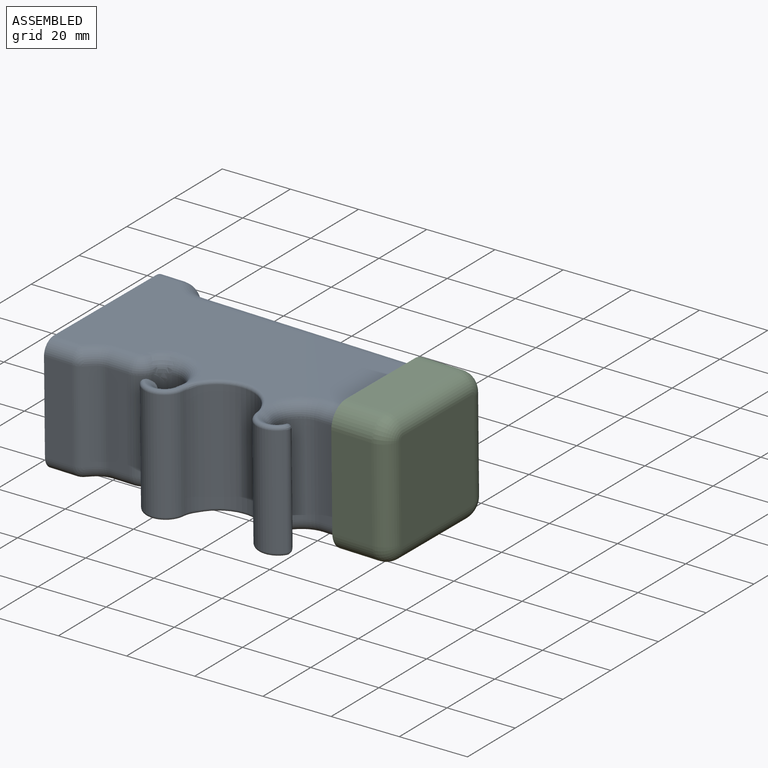
[diagram: assembled view]
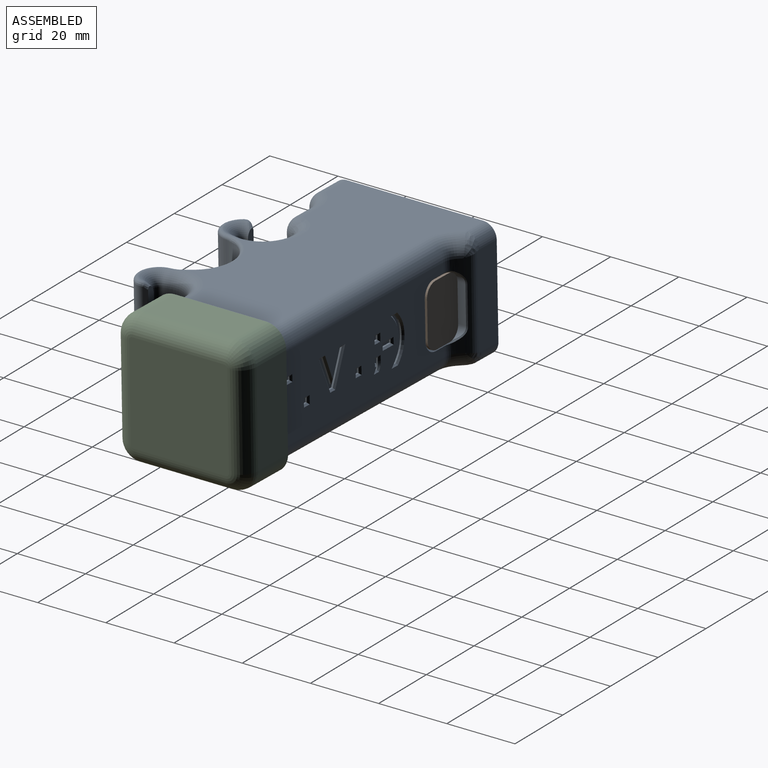
[diagram: assembled view, second angle]
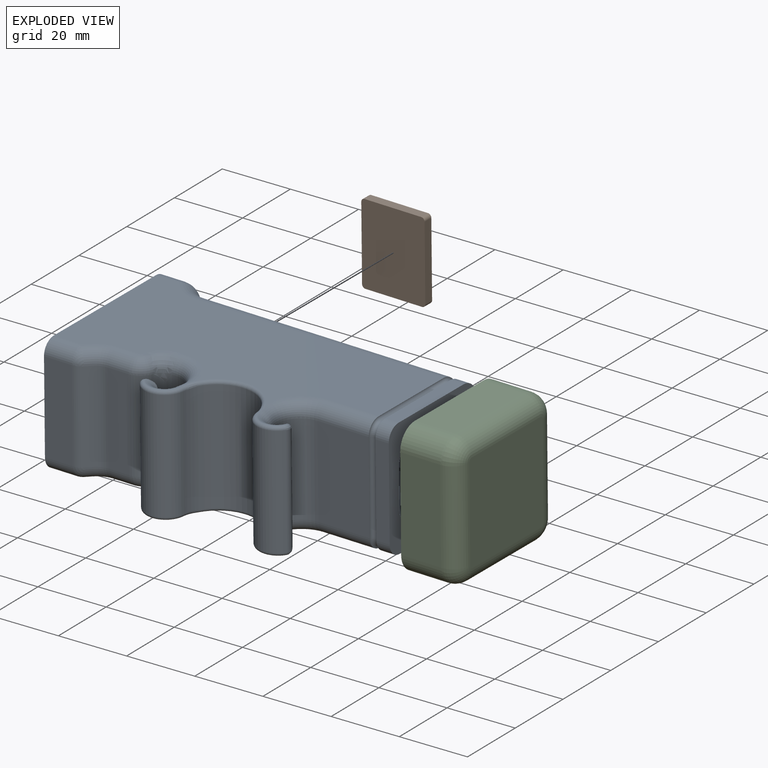
[diagram: exploded view]
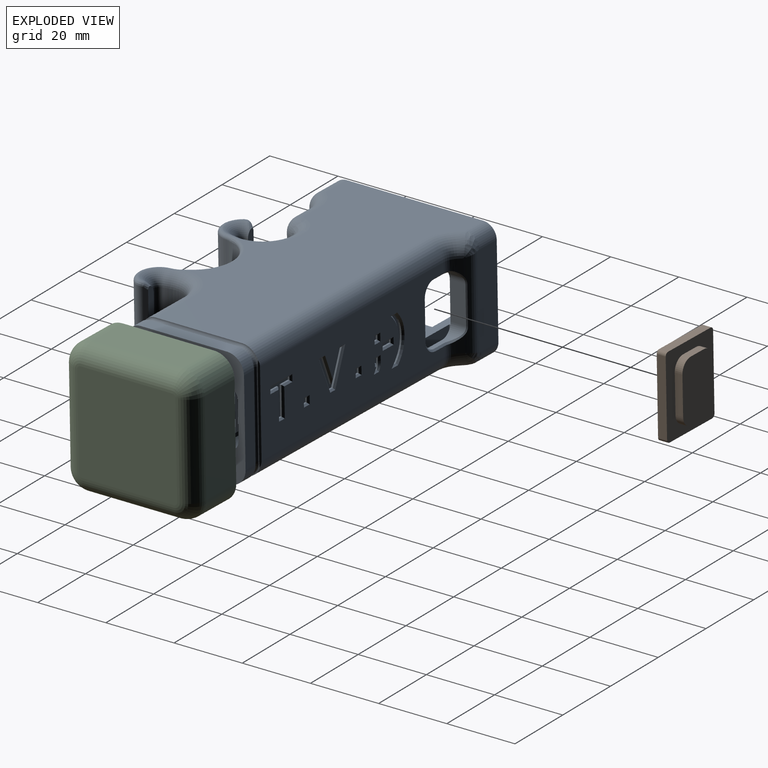
[diagram: exploded view, second angle]
ASSEMBLY  parts=3 mates=2
PART A: 317 faces, bbox 96.4x56.1x37.8 mm
  f0: plane 73.94x25.42mm, normal (0,1,0), area 1547.8mm2, adj f81,f83,f119,f120,f250,f251,f252,f253
  f1: cylinder r=3mm len=5.6mm, axis (1,0,0), area 26.4mm2, adj f18,f31,f46,f145
  f2: cylinder r=3.5mm len=3.5mm, axis (0,1,0), area 8.2mm2, adj f4,f5,f31,f251
  f3: cylinder r=3.5mm len=4.69mm, axis (0,1,0), area 18.9mm2, adj f5,f6,f31,f257,f259,f261
  f4: plane 11.2x1.5mm, normal (-1,0,0), area 16.8mm2, adj f2,f8,f31,f250
  f5: plane 5.2x1.73mm, normal (0,0,1), area 7.9mm2, adj f2,f3,f31,f253,f255
  f6: plane 11.2x4.69mm, normal (1,0,0), area 52.6mm2, adj f3,f9,f31,f263
  f7: cylinder r=3mm len=5.6mm, axis (1,0,0), area 26.4mm2, adj f18,f31,f101,f142
  f8: cylinder r=3.5mm len=3.5mm, axis (0,1,0), area 8.2mm2, adj f4,f10,f31,f252
  f9: cylinder r=3.5mm len=4.69mm, axis (0,1,0), area 18.9mm2, adj f6,f10,f31,f258,f260,f262
  f10: plane 5.2x1.73mm, normal (0,0,-1), area 7.9mm2, adj f8,f9,f31,f254,f256
  f11: plane 27x4mm, normal (0,-1,0), area 108mm2, adj f16,f17,f33,f133
  f12: plane 26x4mm, normal (0,0,-1), area 104mm2, adj f13,f17,f33,f134
  f13: cylinder r=5mm len=5mm, axis (-1,0,0), area 31.4mm2, adj f12,f30,f33,f136
  f14: plane 26x4mm, normal (0,0,1), area 104mm2, adj f15,f16,f33,f135
  f15: cylinder r=5mm len=5mm, axis (-1,0,0), area 31.4mm2, adj f14,f30,f33,f139
  f16: cylinder r=4mm len=4mm, axis (1,0,0), area 25.1mm2, adj f11,f14,f33,f138
  f17: cylinder r=4mm len=4mm, axis (1,0,0), area 25.1mm2, adj f11,f12,f33,f137
  f18: plane 45x31mm, normal (-1,0,0), area 536.3mm2, adj f1,f7,f31,f46,f55,f57,f58,f59
  f19: plane 74x12.52mm, normal (0,1,0), area 926.5mm2, adj f27,f33,f56,f96
  f20: plane 74x3.31mm, normal (0,0.33,0.95), area 259.1mm2, adj f27,f28,f33,f56
  f21: plane 74x7.38mm, normal (0,0,1), area 546.1mm2, adj f28,f29,f33,f56
  f22: plane 74x5.33mm, normal (0,-0.33,0.95), area 417.4mm2, adj f23,f29,f33,f56
  f23: plane 74x1.5mm, normal (0,0,1), area 111mm2, adj f22,f24,f33,f56
  f24: plane 74x1.6mm, normal (0,1,0), area 118.4mm2, adj f23,f25,f33,f56
  f25: plane 74x1.5mm, normal (0,0,1), area 111mm2, adj f24,f26,f33,f56
  f26: plane 74x1.6mm, normal (0,-1,0), area 118.4mm2, adj f25,f33,f46,f56
  f27: cylinder r=3mm len=74mm, axis (1,0,0), area 275.1mm2, adj f19,f20,f33,f56
  f28: cylinder r=3mm len=74mm, axis (-1,0,0), area 73.6mm2, adj f20,f21,f33,f56
  f29: cylinder r=3mm len=74mm, axis (-1,0,0), area 73.6mm2, adj f21,f22,f33,f56
  f30: plane 25x4mm, normal (0,1,0), area 100mm2, adj f13,f15,f33,f140
  f31: plane 94x24mm, normal (0,-1,0), area 1054.5mm2, adj f1,f2,f3,f4,f5,f6,f7,f8
  f32: cylinder r=3mm len=69.4mm, axis (1,0,0), area 327mm2, adj f31,f33,f46,f144
  f33: plane 35x35mm, normal (1,0,0), area 664.2mm2, adj f11,f12,f13,f14,f15,f16,f17,f19
  f34: cylinder r=15mm len=27mm, axis (0,0,-1), area 45.1mm2, adj f44,f47,f127,f131
  f35: plane 27x15.4mm, normal (0,-1,0), area 415.9mm2, adj f47,f125,f129,f133
  f36: plane 27x0.75mm, normal (0,-1,0), area 20.2mm2, adj f48,f63,f109,f150,f161
  f37: cylinder r=15mm len=27mm, axis (0,0,-1), area 45.1mm2, adj f38,f48,f148,f157
  f38: cylinder r=2mm len=27mm, axis (0,0,-1), area 163.3mm2, adj f37,f39,f147,f155
  f39: plane 32x2.24mm, normal (0,1,0), area 69.8mm2, adj f38,f49,f147,f155,f168,f179
  f40: cylinder r=6mm len=32.66mm, axis (0,0,-1), area 478.7mm2, adj f41,f52,f170,f181
  f41: cylinder r=11mm len=33mm, axis (0,0,-1), area 1052.9mm2, adj f40,f42,f171,f172,f173,f174,f175,f182
  f42: cylinder r=6mm len=32.66mm, axis (0,0,-1), area 478.7mm2, adj f41,f51,f176,f187
  f43: plane 32x2.24mm, normal (0,1,0), area 69.8mm2, adj f44,f50,f128,f132,f178,f189
  f44: cylinder r=2mm len=27mm, axis (0,0,-1), area 163.3mm2, adj f34,f43,f128,f132
  f45: plane 90x41.12mm, normal (0,0,-1), area 2754.2mm2, adj f78,f79,f80,f83,f84,f86,f129,f130
  f46: plane 94x3mm, normal (0,0,1), area 271.6mm2, adj f1,f18,f26,f32,f33,f53,f55,f56
  f47: cylinder r=7mm len=27mm, axis (0,0,-1), area 340.2mm2, adj f34,f35,f126,f130
  f48: cylinder r=7mm len=27mm, axis (0,0,-1), area 340.2mm2, adj f36,f37,f149,f159
  f49: plane 32.16x1.04mm, normal (-0.82,0.58,0), area 39.9mm2, adj f39,f52,f168,f179
  f50: plane 32.16x1.04mm, normal (0.82,0.58,0), area 39.9mm2, adj f43,f51,f178,f189
  f51: cylinder r=2mm len=32.66mm, axis (0,0,-1), area 77.5mm2, adj f42,f50,f177,f188
  f52: cylinder r=2mm len=32.66mm, axis (0,0,-1), area 77.5mm2, adj f40,f49,f169,f180
  f53: plane 19x3.6mm, normal (0,1,0), area 68.4mm2, adj f46,f144,f145,f146
  f54: plane 27x6.32mm, normal (0,-1,0), area 170.6mm2, adj f64,f82,f153,f167
  f55: plane 20x3.35mm, normal (0,-1,0), area 67mm2, adj f18,f46,f56,f57,f65
  f56: plane 24.92x23.2mm, normal (-1,0,0), area 123.2mm2, adj f19,f20,f21,f22,f23,f24,f25,f26
  f57: plane 19.99x2.02mm, normal (0,0,1), area 40.4mm2, adj f18,f55,f58,f65
  f58: plane 19.99x1.85mm, normal (0,-1,0), area 36.1mm2, adj f18,f57,f59,f65
  f59: plane 24.5x18mm, normal (0,0,1), area 440.8mm2, adj f18,f58,f65,f66,f69
  f60: plane 17.54x10.2mm, normal (0,1,0), area 178.9mm2, adj f18,f61,f66,f68
  f61: plane 19.23x2.33mm, normal (0,0,1), area 24.5mm2, adj f18,f60,f62,f67,f68
  f62: plane 15x2.8mm, normal (0,1,0), area 42mm2, adj f18,f61,f67,f108
  f63: bspline ~19.25x4mm, area 66.3mm2, adj f36,f64,f109,f163
  f64: cylinder r=5mm len=27mm, axis (0,0,1), area 173.1mm2, adj f54,f63,f109,f152,f165
  f65: cylinder r=2mm len=24.92mm, axis (0,-1,0), area 72.2mm2, adj f55,f56,f57,f58,f59,f69
  f66: cylinder r=2mm len=17.54mm, axis (-1,0,0), area 55.1mm2, adj f18,f59,f60,f70
  f67: cylinder r=5mm len=23.2mm, axis (0,0,1), area 79.4mm2, adj f56,f61,f62,f68,f69,f108,f112,f113
  f68: cylinder r=2mm len=10.2mm, axis (0,0,1), area 20.6mm2, adj f60,f61,f67,f70
  f69: torus R=3mm, axis (0,0,-1), area 7.6mm2, adj f59,f65,f67,f70
  f70: sphere r=2mm, area 4.6mm2, adj f66,f68,f69
  f71: plane 27x8.34mm, normal (0,-1,0), area 225.3mm2, adj f78,f80,f118,f160
  f72: plane 27x7.93mm, normal (0,1,0), area 213.9mm2, adj f78,f79,f85,f88,f117,f122
  f73: plane 27x1.36mm, normal (0.71,-0.71,0), area 52.1mm2, adj f82,f156,f160,f164
  f74: plane 4.78x1.08mm, normal (0.71,0.71,0), area 6.3mm2, adj f81,f86,f88,f259
  f75: plane 31x2mm, normal (0,-1,0), area 62mm2, adj f18,f77,f78,f116
  f76: plane 31x2mm, normal (0,1,0), area 62mm2, adj f18,f77,f78,f116
  f77: plane 45x2mm, normal (0,0,1), area 90mm2, adj f18,f75,f76,f78
  f78: plane 49x35mm, normal (-1,0,0), area 306.3mm2, adj f45,f71,f72,f75,f76,f77,f79,f80
  f79: cylinder r=4mm len=6.93mm, axis (1,0,0), area 43.5mm2, adj f45,f72,f78,f85
  f80: cylinder r=4mm len=8.34mm, axis (-1,0,0), area 52.4mm2, adj f45,f71,f78,f162
  f81: cylinder r=5mm len=3.64mm, axis (0,0,1), area 12.3mm2, adj f0,f74,f84,f255,f257
  f82: cylinder r=5mm len=27mm, axis (0,0,-1), area 106mm2, adj f54,f73,f154,f166
  f83: cylinder r=5mm len=73.93mm, axis (-1,0,0), area 580.3mm2, adj f0,f45,f84,f136,f300
  f84: torus R=10mm, axis (0,0,1), area 42.1mm2, adj f45,f81,f83,f86
  f85: bspline ~4.88x4.51mm, area 12.7mm2, adj f72,f79,f86,f87
  f86: cylinder r=5mm len=5.61mm, axis (0.71,-0.71,0), area 17.5mm2, adj f45,f74,f84,f85,f87
  f87: bspline ~4.19x3.97mm, area 5.2mm2, adj f85,f86,f88
  f88: cylinder r=5mm len=26.41mm, axis (0,0,1), area 89.1mm2, adj f72,f74,f87,f115,f124,f261,f262,f263
  f89: plane 74x3.31mm, normal (0,0.33,-0.95), area 259.1mm2, adj f33,f56,f96,f97
  f90: plane 74x7.38mm, normal (0,0,-1), area 546.1mm2, adj f33,f56,f97,f98
  f91: plane 74x5.33mm, normal (0,-0.33,-0.95), area 417.4mm2, adj f33,f56,f92,f98
  f92: plane 74x1.5mm, normal (0,0,-1), area 111mm2, adj f33,f56,f91,f93
  f93: plane 74x1.6mm, normal (0,1,0), area 118.4mm2, adj f33,f56,f92,f94
  f94: plane 74x1.5mm, normal (0,0,-1), area 111mm2, adj f33,f56,f93,f95
  f95: plane 74x1.6mm, normal (0,-1,0), area 118.4mm2, adj f33,f56,f94,f101
  f96: cylinder r=3mm len=74mm, axis (1,0,0), area 275.1mm2, adj f19,f33,f56,f89
  f97: cylinder r=3mm len=74mm, axis (-1,0,0), area 73.6mm2, adj f33,f56,f89,f90
  f98: cylinder r=3mm len=74mm, axis (-1,0,0), area 73.6mm2, adj f33,f56,f90,f91
  f99: cylinder r=3mm len=69.4mm, axis (1,0,0), area 327mm2, adj f31,f33,f101,f143
  f100: plane 90x41.12mm, normal (0,0,1), area 2754.2mm2, adj f78,f117,f118,f120,f121,f123,f125,f126
  f101: plane 94x3mm, normal (0,0,-1), area 271.6mm2, adj f7,f18,f33,f56,f95,f99,f102,f103
  f102: plane 19x3.6mm, normal (0,1,0), area 68.4mm2, adj f101,f141,f142,f143
  f103: plane 20x3.35mm, normal (0,-1,0), area 67mm2, adj f18,f56,f101,f104,f110
  f104: plane 19.99x2.02mm, normal (0,0,-1), area 40.4mm2, adj f18,f103,f105,f110
  f105: plane 19.99x1.85mm, normal (0,-1,0), area 36.1mm2, adj f18,f104,f106,f110
  f106: plane 24.5x18mm, normal (0,0,-1), area 440.8mm2, adj f18,f105,f110,f111,f113
  f107: plane 17.54x10.2mm, normal (0,1,0), area 178.9mm2, adj f18,f108,f111,f112
  f108: plane 19.23x2.33mm, normal (0,0,-1), area 24.5mm2, adj f18,f62,f67,f107,f112
  f109: bspline ~19.25x4mm, area 66.3mm2, adj f36,f63,f64,f151
  f110: cylinder r=2mm len=24.92mm, axis (0,-1,0), area 72.2mm2, adj f56,f103,f104,f105,f106,f113
  f111: cylinder r=2mm len=17.54mm, axis (-1,0,0), area 55.1mm2, adj f18,f106,f107,f114
  f112: cylinder r=2mm len=10.2mm, axis (0,0,-1), area 20.6mm2, adj f67,f107,f108,f114
  f113: torus R=3mm, axis (0,0,1), area 7.6mm2, adj f67,f106,f110,f114
  f114: sphere r=2mm, area 4.6mm2, adj f111,f112,f113
  f115: plane 4.78x1.08mm, normal (0.71,0.71,0), area 6.3mm2, adj f88,f119,f123,f260
  f116: plane 45x2mm, normal (0,0,-1), area 90mm2, adj f18,f75,f76,f78
  f117: cylinder r=4mm len=6.93mm, axis (1,0,0), area 43.5mm2, adj f72,f78,f100,f122
  f118: cylinder r=4mm len=8.34mm, axis (-1,0,0), area 52.4mm2, adj f71,f78,f100,f158
  f119: cylinder r=5mm len=3.64mm, axis (0,0,-1), area 12.3mm2, adj f0,f115,f121,f256,f258
  f120: cylinder r=5mm len=73.93mm, axis (-1,0,0), area 580.3mm2, adj f0,f100,f121,f139,f300
  f121: torus R=10mm, axis (0,0,-1), area 42.1mm2, adj f100,f119,f120,f123
  f122: bspline ~4.29x4mm, area 12.7mm2, adj f72,f117,f123,f124
  f123: cylinder r=5mm len=5.61mm, axis (0.71,-0.71,0), area 17.5mm2, adj f100,f115,f121,f122,f124
  f124: bspline ~4.19x3.97mm, area 5.2mm2, adj f88,f122,f123
  f125: cylinder r=4mm len=15.4mm, axis (1,0,0), area 96.8mm2, adj f35,f100,f126,f138
  f126: torus R=11mm, axis (0,0,-1), area 93.4mm2, adj f47,f100,f125,f127,f174
  f127: torus R=11mm, axis (0,0,-1), area 7.7mm2, adj f34,f126,f128,f175
  f128: torus R=6mm, axis (0,0,-1), area 40mm2, adj f43,f44,f127,f176,f177,f178
  f129: cylinder r=4mm len=15.4mm, axis (1,0,0), area 96.8mm2, adj f35,f45,f130,f137
  f130: torus R=11mm, axis (0,0,1), area 93.4mm2, adj f45,f47,f129,f131,f185
  f131: torus R=11mm, axis (0,0,1), area 7.7mm2, adj f34,f130,f132,f186
  f132: torus R=6mm, axis (0,0,1), area 40mm2, adj f43,f44,f131,f187,f188,f189
  f133: cylinder r=1mm len=27mm, axis (0,0,-1), area 84.8mm2, adj f11,f35,f137,f138
  f134: cylinder r=1mm len=26mm, axis (0,1,0), area 81.7mm2, adj f12,f45,f136,f137
  f135: cylinder r=1mm len=26mm, axis (0,-1,0), area 81.7mm2, adj f14,f100,f138,f139
  f136: torus R=5mm, axis (1,0,0), area 21.2mm2, adj f13,f83,f134,f140,f300
  f137: torus R=4mm, axis (1,0,0), area 16.6mm2, adj f17,f129,f133,f134
  f138: torus R=4mm, axis (1,0,0), area 16.6mm2, adj f16,f125,f133,f135
  f139: torus R=5mm, axis (1,0,0), area 21.2mm2, adj f15,f120,f135,f140,f300
  f140: cylinder r=1mm len=25mm, axis (0,0,1), area 70mm2, adj f30,f136,f139,f300
  f141: plane 19x3mm, normal (0,0,-1), area 57mm2, adj f31,f102,f142,f143
  f142: plane 6.6x3mm, normal (1,0,0), area 12.7mm2, adj f7,f31,f102,f141
  f143: plane 6.6x3mm, normal (-1,0,0), area 12.7mm2, adj f31,f99,f102,f141
  f144: plane 6.6x3mm, normal (-1,0,0), area 12.7mm2, adj f31,f32,f53,f146
  f145: plane 6.6x3mm, normal (1,0,0), area 12.7mm2, adj f1,f31,f53,f146
  f146: plane 19x3mm, normal (0,0,1), area 57mm2, adj f31,f53,f144,f145
  f147: torus R=6mm, axis (0,0,-1), area 40mm2, adj f38,f39,f148,f168,f169,f170
  f148: torus R=11mm, axis (0,0,-1), area 7.7mm2, adj f37,f147,f149,f171
  f149: torus R=11mm, axis (0,0,-1), area 93.4mm2, adj f48,f100,f148,f150,f172
  f150: cylinder r=4mm len=4mm, axis (1,0,0), area 4.7mm2, adj f36,f100,f149,f151
  f151: bspline ~9.39x7.11mm, area 42.6mm2, adj f100,f109,f150,f152
  f152: torus R=1mm, axis (0,0,-1), area 28.6mm2, adj f64,f100,f151,f153
  f153: cylinder r=4mm len=6.32mm, axis (-1,0,0), area 39.7mm2, adj f54,f100,f152,f154
  f154: torus R=9mm, axis (0,0,-1), area 31.8mm2, adj f82,f100,f153,f156
  f155: torus R=6mm, axis (0,0,1), area 40mm2, adj f38,f39,f157,f179,f180,f181
  f156: cylinder r=4mm len=4.19mm, axis (0.71,0.71,0), area 12.1mm2, adj f73,f100,f154,f158
  f157: torus R=11mm, axis (0,0,1), area 7.7mm2, adj f37,f155,f159,f182
  f158: sphere r=4mm, area 15.8mm2, adj f118,f156,f160
  f159: torus R=11mm, axis (0,0,1), area 93.4mm2, adj f45,f48,f157,f161,f183
  f160: cylinder r=4mm len=27mm, axis (0,0,-1), area 84.8mm2, adj f71,f73,f158,f162
  f161: cylinder r=4mm len=4mm, axis (1,0,0), area 4.7mm2, adj f36,f45,f159,f163
  f162: sphere r=4mm, area 13.3mm2, adj f80,f160,f164
  f163: bspline ~9.39x7.11mm, area 42.6mm2, adj f45,f63,f161,f165
  f164: cylinder r=4mm len=4.19mm, axis (0.71,0.71,0), area 12.1mm2, adj f45,f73,f162,f166
  f165: torus R=1mm, axis (0,0,1), area 28.6mm2, adj f45,f64,f163,f167
  f166: torus R=9mm, axis (0,0,1), area 31.8mm2, adj f45,f82,f164,f167
  f167: cylinder r=4mm len=6.32mm, axis (-1,0,0), area 39.7mm2, adj f45,f54,f165,f166
  f168: bspline ~5.11x3.8mm, area 3.7mm2, adj f39,f49,f147,f169
  f169: bspline ~3.46x1.9mm, area 4.1mm2, adj f52,f147,f168,f170
  f170: torus R=5mm, axis (0,0,-1), area 25.6mm2, adj f40,f147,f169,f171
  f171: torus R=12mm, axis (0,0,-1), area 2.4mm2, adj f41,f148,f170,f172
  f172: bspline ~4.16x2.65mm, area 5.8mm2, adj f41,f149,f171,f173
  f173: torus R=12mm, axis (0,0,-1), area 37.8mm2, adj f41,f100,f172,f174
  f174: bspline ~5.05x3.23mm, area 5.8mm2, adj f41,f126,f173,f175
  f175: torus R=12mm, axis (0,0,-1), area 2.4mm2, adj f41,f127,f174,f176
  f176: torus R=5mm, axis (0,0,-1), area 25.6mm2, adj f42,f128,f175,f177
  f177: bspline ~3.46x1.9mm, area 4.1mm2, adj f51,f128,f176,f178
  f178: bspline ~5.11x3.8mm, area 3.7mm2, adj f43,f50,f128,f177
  f179: bspline ~5.11x3.8mm, area 3.7mm2, adj f39,f49,f155,f180
  f180: bspline ~3.46x1.9mm, area 4.1mm2, adj f52,f155,f179,f181
  f181: torus R=5mm, axis (0,0,-1), area 25.6mm2, adj f40,f155,f180,f182
  f182: torus R=12mm, axis (0,0,-1), area 2.4mm2, adj f41,f157,f181,f183
  f183: bspline ~4.16x2.65mm, area 5.8mm2, adj f41,f159,f182,f184
  f184: torus R=12mm, axis (0,0,1), area 37.8mm2, adj f41,f45,f183,f185
  f185: bspline ~4.51x2.87mm, area 5.8mm2, adj f41,f130,f184,f186
  f186: torus R=12mm, axis (0,0,-1), area 2.4mm2, adj f41,f131,f185,f187
  f187: torus R=5mm, axis (0,0,-1), area 25.6mm2, adj f42,f132,f186,f188
  f188: bspline ~3.46x1.9mm, area 4.1mm2, adj f51,f132,f187,f189
  f189: bspline ~5.11x3.8mm, area 3.7mm2, adj f43,f50,f132,f188
  f190: plane 1.48x0.5mm, normal (-1,0,0), area 0.7mm2, adj f191,f193,f194,f307
  f191: plane 1.32x0.5mm, normal (0,0,1), area 0.7mm2, adj f190,f192,f194,f308
  f192: plane 1.48x0.5mm, normal (1,0,0), area 0.7mm2, adj f191,f193,f194,f306
  f193: plane 1.32x0.5mm, normal (0,0,-1), area 0.7mm2, adj f190,f192,f194,f305
  f194: plane 1.48x1.32mm, normal (0,1,0), area 2mm2, adj f190,f191,f192,f193
  f195: plane 1.34x0.5mm, normal (0,0,1), area 0.7mm2, adj f196,f203,f204,f292
  f196: plane 9.52x3.89mm, normal (0.93,0,0.38), area 5.1mm2, adj f195,f197,f204,f294
  f197: plane 1.36x0.5mm, normal (0,0,-1), area 0.7mm2, adj f196,f198,f204,f296
  f198: plane 6.7x2.62mm, normal (-0.93,0,-0.36), area 3.6mm2, adj f197,f199,f204,f298
  f199: plane 1.68x0.57mm, normal (-0.95,0,-0.32), area 0.9mm2, adj f198,f200,f204,f299
  f200: plane 1.68x0.57mm, normal (0.95,0,-0.32), area 0.9mm2, adj f199,f201,f204,f297
  f201: plane 6.7x2.64mm, normal (0.93,0,-0.37), area 3.6mm2, adj f200,f202,f204,f295
  f202: plane 1.36x0.5mm, normal (0,0,-1), area 0.7mm2, adj f201,f203,f204,f293
  f203: plane 9.52x3.89mm, normal (-0.93,0,0.38), area 5.1mm2, adj f195,f202,f204,f291
  f204: plane 9.52x9.11mm, normal (0,1,0), area 23.5mm2, adj f195,f196,f197,f198,f199,f200,f201,f202
  f205: plane 1.48x0.5mm, normal (-1,0,0), area 0.7mm2, adj f206,f208,f209,f301
  f206: plane 1.32x0.5mm, normal (0,0,1), area 0.7mm2, adj f205,f207,f209,f303
  f207: plane 1.48x0.5mm, normal (1,0,0), area 0.7mm2, adj f206,f208,f209,f304
  f208: plane 1.32x0.5mm, normal (0,0,-1), area 0.7mm2, adj f205,f207,f209,f302
  f209: plane 1.48x1.32mm, normal (0,1,0), area 2mm2, adj f205,f206,f207,f208
  f210: plane 1.06x0.5mm, normal (1,0,0), area 0.5mm2, adj f211,f217,f218,f289
  f211: plane 1.32x0.5mm, normal (0,0,-1), area 0.7mm2, adj f210,f212,f218,f290
  f212: plane 1.4x0.5mm, normal (-1,0,0), area 0.7mm2, adj f211,f213,f218,f288
  f213: plane 0.59x0.5mm, normal (0,0,1), area 0.3mm2, adj f212,f214,f218,f286
  f214: extruded ~1.77x0.64mm, area 1mm2, adj f213,f215,f218,f284
  f215: plane 0.83x0.5mm, normal (0,0,1), area 0.4mm2, adj f214,f216,f218,f283
  f216: extruded ~0.92x0.5mm, area 0.5mm2, adj f215,f217,f218,f285
  f217: extruded ~1.2x0.5mm, area 0.6mm2, adj f210,f216,f218,f287
  f218: plane 3.17x1.36mm, normal (0,1,0), area 3.2mm2, adj f210,f211,f212,f213,f214,f215,f216,f217
  f219: plane 1.4x0.5mm, normal (-1,0,0), area 0.7mm2, adj f220,f222,f223,f281
  f220: plane 1.32x0.5mm, normal (0,0,1), area 0.7mm2, adj f219,f221,f223,f282
  f221: plane 1.4x0.5mm, normal (1,0,0), area 0.7mm2, adj f220,f222,f223,f280
  f222: plane 1.32x0.5mm, normal (0,0,-1), area 0.7mm2, adj f219,f221,f223,f279
  f223: plane 1.4x1.32mm, normal (0,1,0), area 1.8mm2, adj f219,f220,f221,f222
  f224: plane 1.08x0.5mm, normal (-1,0,0), area 0.5mm2, adj f225,f227,f228,f277
  f225: plane 3.38x0.5mm, normal (0,0,1), area 1.7mm2, adj f224,f226,f228,f278
  f226: plane 1.08x0.5mm, normal (1,0,0), area 0.5mm2, adj f225,f227,f228,f276
  f227: plane 3.38x0.5mm, normal (0,0,-1), area 1.7mm2, adj f224,f226,f228,f275
  f228: plane 3.38x1.08mm, normal (0,1,0), area 3.7mm2, adj f224,f225,f226,f227
  f229: extruded ~3.51x0.61mm, area 1.8mm2, adj f230,f239,f240,f273
  f230: plane 0.5x0.03mm, normal (1,0,0), area 0mm2, adj f229,f231,f240,f274
  f231: extruded ~3.5x0.61mm, area 1.8mm2, adj f230,f232,f240,f272
  f232: extruded ~2.94x1.89mm, area 1.8mm2, adj f231,f233,f240,f270
  f233: plane 1.17x0.5mm, normal (0,0,-1), area 0.6mm2, adj f232,f234,f240,f268
  f234: extruded ~2.99x1.85mm, area 1.8mm2, adj f233,f235,f240,f266
  f235: extruded ~3.46x0.59mm, area 1.8mm2, adj f234,f236,f240,f264
  f236: extruded ~3.46x0.59mm, area 1.8mm2, adj f235,f237,f240,f265
  f237: extruded ~2.99x1.86mm, area 1.8mm2, adj f236,f238,f240,f267
  f238: plane 1.17x0.5mm, normal (0,0,1), area 0.6mm2, adj f237,f239,f240,f269
  f239: extruded ~2.93x1.88mm, area 1.7mm2, adj f229,f238,f240,f271
  f240: plane 12.89x3.67mm, normal (0,1,0), area 15.7mm2, adj f229,f230,f231,f232,f233,f234,f235,f236
  f241: plane 8.47x0.5mm, normal (1,0,0), area 4.2mm2, adj f242,f248,f249,f309
  f242: plane 3.27x0.5mm, normal (0,0,1), area 1.6mm2, adj f241,f243,f249,f311
  f243: plane 1.05x0.5mm, normal (1,0,0), area 0.5mm2, adj f242,f244,f249,f313
  f244: plane 7.82x0.5mm, normal (0,0,-1), area 3.9mm2, adj f243,f245,f249,f315
  f245: plane 1.05x0.5mm, normal (-1,0,0), area 0.5mm2, adj f244,f246,f249,f316
  f246: plane 3.27x0.5mm, normal (0,0,1), area 1.6mm2, adj f245,f247,f249,f314
  f247: plane 8.47x0.5mm, normal (-1,0,0), area 4.2mm2, adj f246,f248,f249,f312
  f248: plane 1.28x0.5mm, normal (0,0,1), area 0.6mm2, adj f241,f247,f249,f310
  f249: plane 9.52x7.82mm, normal (0,1,0), area 19.1mm2, adj f241,f242,f243,f244,f245,f246,f247,f248
  f250: plane 11.2x0.5mm, normal (-0.71,0.71,0), area 7.9mm2, adj f0,f4,f251,f252
  f251: cone r=3.5mm half-angle=45deg, axis (0,1,0), area 4.2mm2, adj f0,f2,f250,f253
  f252: cone r=4mm half-angle=45deg, axis (0,1,0), area 4.2mm2, adj f0,f8,f250,f254
  f253: plane 3.63x0.5mm, normal (0,0.71,0.71), area 2.6mm2, adj f0,f5,f251,f255
  f254: plane 3.63x0.5mm, normal (0,0.71,-0.71), area 2.6mm2, adj f0,f10,f252,f256
  f255: cone r=5.5mm half-angle=45deg, axis (0,0,1), area 1.1mm2, adj f5,f81,f253,f257
  f256: cone r=5mm half-angle=45deg, axis (0,0,-1), area 1.1mm2, adj f10,f119,f254,f258
  f257: bspline ~2.17x1.74mm, area 1.7mm2, adj f3,f81,f255,f259
  f258: bspline ~2.17x1.74mm, area 1.7mm2, adj f9,f119,f256,f260
  f259: bspline ~1.42x1.4mm, area 0.9mm2, adj f3,f74,f257,f261
  f260: bspline ~1.42x1.4mm, area 0.9mm2, adj f9,f115,f258,f262
  f261: bspline ~2.12x0.92mm, area 1mm2, adj f3,f88,f259,f263
  f262: bspline ~2.12x0.92mm, area 1mm2, adj f9,f88,f260,f263
  f263: plane 11.2x0.41mm, normal (0.89,0.46,0), area 5.2mm2, adj f6,f88,f261,f262
  f264: bspline ~3.46x1.06mm, area 2.4mm2, adj f0,f235,f265,f266
  f265: bspline ~3.46x1.06mm, area 2.4mm2, adj f0,f236,f264,f267
  f266: bspline ~4.16x3.12mm, area 2.8mm2, adj f0,f234,f264,f268
  f267: bspline ~4.16x3.12mm, area 2.8mm2, adj f0,f237,f265,f269
  f268: plane 2.51x0.5mm, normal (0,0.71,-0.71), area 1.3mm2, adj f0,f233,f266,f270
  f269: plane 2.52x0.5mm, normal (0,0.71,0.71), area 1.3mm2, adj f0,f238,f267,f271
  f270: bspline ~3.58x2.63mm, area 2.6mm2, adj f0,f232,f268,f272
  f271: bspline ~3.57x2.63mm, area 2.6mm2, adj f0,f239,f269,f273
  f272: bspline ~3.68x1.11mm, area 2.6mm2, adj f0,f231,f270,f274
  f273: bspline ~3.69x1.11mm, area 2.6mm2, adj f0,f229,f271,f274
  f274: plane 0.5x0.5mm, normal (0.71,0.71,0), area 0mm2, adj f0,f230,f272,f273
  f275: plane 4.38x0.5mm, normal (0,0.71,-0.71), area 2.7mm2, adj f0,f227,f276,f277
  f276: plane 2.08x0.5mm, normal (0.71,0.71,0), area 1.1mm2, adj f0,f226,f275,f278
  f277: plane 2.08x0.5mm, normal (-0.71,0.71,0), area 1.1mm2, adj f0,f224,f275,f278
  f278: plane 4.38x0.5mm, normal (0,0.71,0.71), area 2.7mm2, adj f0,f225,f276,f277
  f279: plane 2.32x0.5mm, normal (0,0.71,-0.71), area 1.3mm2, adj f0,f222,f280,f281
  f280: plane 2.4x0.5mm, normal (0.71,0.71,0), area 1.3mm2, adj f0,f221,f279,f282
  f281: plane 2.4x0.5mm, normal (-0.71,0.71,0), area 1.3mm2, adj f0,f219,f279,f282
  f282: plane 2.32x0.5mm, normal (0,0.71,0.71), area 1.3mm2, adj f0,f220,f280,f281
  f283: plane 2.07x0.51mm, normal (0,0.71,0.71), area 1mm2, adj f0,f215,f284,f285
  f284: bspline ~2.56x1.59mm, area 1.4mm2, adj f0,f214,f283,f286
  f285: bspline ~1.48x1.07mm, area 0.9mm2, adj f0,f216,f283,f287
  f286: plane 1.15x0.56mm, normal (0,0.71,0.71), area 0.4mm2, adj f0,f213,f284,f288
  f287: bspline ~1.33x0.63mm, area 0.9mm2, adj f0,f217,f285,f289
  f288: plane 2.4x0.5mm, normal (-0.71,0.71,0), area 1.3mm2, adj f0,f212,f286,f290
  f289: plane 1.56x0.5mm, normal (0.71,0.71,0), area 0.9mm2, adj f0,f210,f287,f290
  f290: plane 2.32x0.5mm, normal (0,0.71,-0.71), area 1.3mm2, adj f0,f211,f288,f289
  f291: plane 10.52x4.63mm, normal (-0.65,0.71,0.27), area 7.7mm2, adj f0,f203,f292,f293
  f292: plane 2.01x0.5mm, normal (0,0.71,0.71), area 1.2mm2, adj f0,f195,f291,f294
  f293: plane 2.44x0.5mm, normal (0,0.71,-0.71), area 1.3mm2, adj f0,f202,f291,f295
  f294: plane 10.52x4.63mm, normal (0.65,0.71,0.27), area 7.7mm2, adj f0,f196,f292,f296
  f295: plane 7.2x3.11mm, normal (0.66,0.71,-0.26), area 5.2mm2, adj f0,f201,f293,f297
  f296: plane 2.44x0.5mm, normal (0,0.71,-0.71), area 1.3mm2, adj f0,f197,f294,f298
  f297: plane 1.85x0.57mm, normal (0.67,0.71,-0.23), area 0.7mm2, adj f0,f200,f295,f299
  f298: plane 7.2x3.09mm, normal (-0.66,0.71,-0.26), area 5.2mm2, adj f0,f198,f296,f299
  f299: plane 1.85x0.57mm, normal (-0.67,0.71,-0.23), area 0.7mm2, adj f0,f199,f297,f298
  f300: plane 28.58x0.68mm, normal (0.58,0.82,0), area 15.7mm2, adj f0,f83,f120,f136,f139,f140
  f301: plane 2.48x0.5mm, normal (-0.71,0.71,0), area 1.4mm2, adj f0,f205,f302,f303
  f302: plane 2.32x0.5mm, normal (0,0.71,-0.71), area 1.3mm2, adj f0,f208,f301,f304
  f303: plane 2.32x0.5mm, normal (0,0.71,0.71), area 1.3mm2, adj f0,f206,f301,f304
  f304: plane 2.48x0.5mm, normal (0.71,0.71,0), area 1.4mm2, adj f0,f207,f302,f303
  f305: plane 2.32x0.5mm, normal (0,0.71,-0.71), area 1.3mm2, adj f0,f193,f306,f307
  f306: plane 2.48x0.5mm, normal (0.71,0.71,0), area 1.4mm2, adj f0,f192,f305,f308
  f307: plane 2.48x0.5mm, normal (-0.71,0.71,0), area 1.4mm2, adj f0,f190,f305,f308
  f308: plane 2.32x0.5mm, normal (0,0.71,0.71), area 1.3mm2, adj f0,f191,f306,f307
  f309: plane 8.97x0.5mm, normal (0.71,0.71,0), area 6mm2, adj f0,f241,f310,f311
  f310: plane 2.28x0.5mm, normal (0,0.71,0.71), area 1.3mm2, adj f0,f248,f309,f312
  f311: plane 3.77x0.5mm, normal (0,0.71,0.71), area 2.3mm2, adj f0,f242,f309,f313
  f312: plane 8.97x0.5mm, normal (-0.71,0.71,0), area 6mm2, adj f0,f247,f310,f314
  f313: plane 2.05x0.5mm, normal (0.71,0.71,0), area 1.1mm2, adj f0,f243,f311,f315
  f314: plane 3.77x0.5mm, normal (0,0.71,0.71), area 2.3mm2, adj f0,f246,f312,f316
  f315: plane 8.82x0.5mm, normal (0,0.71,-0.71), area 5.9mm2, adj f0,f244,f313,f316
  f316: plane 2.05x0.5mm, normal (-0.71,0.71,0), area 1.1mm2, adj f0,f245,f314,f315
PART B: 19 faces, bbox 24x19x5 mm
  f0: plane 11.2x2.3mm, normal (0,1,0), area 25.8mm2, adj f4,f5,f7,f15
  f1: plane 11.2x2.3mm, normal (0,-1,0), area 25.8mm2, adj f2,f5,f7,f13
  f2: cylinder r=3.5mm len=3.5mm, axis (0,0,-1), area 12.6mm2, adj f1,f3,f5,f7
  f3: plane 5.2x2.3mm, normal (1,0,0), area 12mm2, adj f2,f4,f5,f7
  f4: cylinder r=3.5mm len=3.5mm, axis (0,0,-1), area 12.6mm2, adj f0,f3,f5,f7
  f5: plane 18.2x12.2mm, normal (0,0,1), area 211.5mm2, adj f0,f1,f2,f3,f4,f13,f14,f15
  f6: plane 24x19mm, normal (0,0,-1), area 455.1mm2, adj f8,f9,f10,f11,f12,f16,f17,f18
  f7: plane 24x19mm, normal (0,0,1), area 243.6mm2, adj f0,f1,f2,f3,f4,f8,f9,f10
  f8: plane 22x2.7mm, normal (0,1,0), area 59.4mm2, adj f6,f7,f12,f18
  f9: plane 22x2.7mm, normal (0,-1,0), area 59.4mm2, adj f6,f7,f11,f17
  f10: plane 17x2.7mm, normal (1,0,0), area 45.9mm2, adj f6,f7,f11,f12
  f11: cylinder r=1mm len=2.7mm, axis (0,0,1), area 4.2mm2, adj f6,f7,f9,f10
  f12: cylinder r=1mm len=2.7mm, axis (0,0,-1), area 4.2mm2, adj f6,f7,f8,f10
  f13: cylinder r=3.5mm len=3.5mm, axis (0,0,-1), area 12.6mm2, adj f1,f5,f7,f14
  f14: plane 5.2x2.3mm, normal (-1,0,0), area 12mm2, adj f5,f7,f13,f15
  f15: cylinder r=3.5mm len=3.5mm, axis (0,0,-1), area 12.6mm2, adj f0,f5,f7,f14
  f16: plane 17x2.7mm, normal (-1,0,0), area 45.9mm2, adj f6,f7,f17,f18
  f17: cylinder r=1mm len=2.7mm, axis (0,0,1), area 4.2mm2, adj f6,f7,f9,f16
  f18: cylinder r=1mm len=2.7mm, axis (0,0,-1), area 4.2mm2, adj f6,f7,f8,f16
PART C: 35 faces, bbox 39.5x39.5x17 mm
  f0: plane 27.5x12mm, normal (0,1,0), area 330mm2, adj f9,f15,f18,f22
  f1: plane 27.5x12mm, normal (-1,0,0), area 330mm2, adj f9,f15,f16,f26
  f2: plane 27.5x12mm, normal (0,-1,0), area 330mm2, adj f9,f16,f17,f23
  f3: plane 27.5x12mm, normal (1,0,0), area 330mm2, adj f9,f17,f18,f19
  f4: plane 29.5x29.5mm, normal (0,0,-1), area 869.4mm2, adj f19,f20,f21,f22,f23,f24,f25,f26
  f5: plane 26x14mm, normal (1,0,0), area 364mm2, adj f10,f11,f14,f27
  f6: plane 25.5x14mm, normal (0,-1,0), area 357mm2, adj f10,f11,f12,f30
  f7: plane 26x14mm, normal (-1,0,0), area 364mm2, adj f10,f12,f13,f34
  f8: plane 26.5x14mm, normal (0,1,0), area 371mm2, adj f10,f13,f14,f31
  f9: plane 39.5x39.5mm, normal (0,0,1), area 151.5mm2, adj f0,f1,f2,f3,f15,f16,f17,f18
  f10: plane 35.5x35.5mm, normal (0,0,1), area 1240.8mm2, adj f5,f6,f7,f8,f11,f12,f13,f14
  f11: cylinder r=5mm len=14mm, axis (0,0,-1), area 110mm2, adj f5,f6,f10,f28
  f12: cylinder r=5mm len=14mm, axis (0,0,1), area 110mm2, adj f6,f7,f10,f32
  f13: cylinder r=4.5mm len=14mm, axis (0,0,-1), area 99mm2, adj f7,f8,f10,f33
  f14: cylinder r=4.5mm len=14mm, axis (0,0,1), area 99mm2, adj f5,f8,f10,f29
  f15: cylinder r=6mm len=12mm, axis (0,0,1), area 113.1mm2, adj f0,f1,f9,f24
  f16: cylinder r=6mm len=12mm, axis (0,0,-1), area 113.1mm2, adj f1,f2,f9,f25
  f17: cylinder r=6mm len=12mm, axis (0,0,1), area 113.1mm2, adj f2,f3,f9,f21
  f18: cylinder r=6mm len=12mm, axis (0,0,-1), area 113.1mm2, adj f0,f3,f9,f20
  f19: cylinder r=5mm len=27.5mm, axis (0,1,0), area 216mm2, adj f3,f4,f20,f21
  f20: torus R=1mm, axis (0,0,1), area 51.6mm2, adj f4,f18,f19,f22
  f21: torus R=1mm, axis (0,0,1), area 51.6mm2, adj f4,f17,f19,f23
  f22: cylinder r=5mm len=27.5mm, axis (-1,0,0), area 216mm2, adj f0,f4,f20,f24
  f23: cylinder r=5mm len=27.5mm, axis (1,0,0), area 216mm2, adj f2,f4,f21,f25
  f24: torus R=1mm, axis (0,0,1), area 51.6mm2, adj f4,f15,f22,f26
  f25: torus R=1mm, axis (0,0,1), area 51.6mm2, adj f4,f16,f23,f26
  f26: cylinder r=5mm len=27.5mm, axis (0,-1,0), area 216mm2, adj f1,f4,f24,f25
  f27: plane 26x1mm, normal (0.71,0,0.71), area 36.8mm2, adj f5,f9,f28,f29
  f28: cone r=6mm half-angle=45deg, axis (0,0,1), area 12.2mm2, adj f9,f11,f27,f30
  f29: cone r=5.5mm half-angle=45deg, axis (0,0,1), area 11.1mm2, adj f9,f14,f27,f31
  f30: plane 25.5x1mm, normal (0,-0.71,0.71), area 36.1mm2, adj f6,f9,f28,f32
  f31: plane 26.5x1mm, normal (0,0.71,0.71), area 37.5mm2, adj f8,f9,f29,f33
  f32: cone r=6mm half-angle=45deg, axis (0,0,1), area 12.2mm2, adj f9,f12,f30,f34
  f33: cone r=5.5mm half-angle=45deg, axis (0,0,1), area 11.1mm2, adj f9,f13,f31,f34
  f34: plane 26x1mm, normal (-0.71,0,0.71), area 36.8mm2, adj f7,f9,f32,f33
PLACE A rot(axis=(0.48,0.05,-0.88),2.1deg) t=(41.97,-49.19,36.92)mm
PLACE B rot(axis=(-0.58,-0.56,-0.59),120.4deg) t=(7.34,-13.08,55.1)mm
PLACE C rot(axis=(-0.59,-0.58,0.57),118.3deg) t=(87.76,-26.4,52.24)mm
MATE fastened A.f33 <-> C.f10  axis (1,-0.03,0) through (85.24,-41.56,36.98)mm
MATE fastened B.f7 <-> A.f31  axis (0.03,1,0.02) through (4.75,-10.45,64.25)mm
